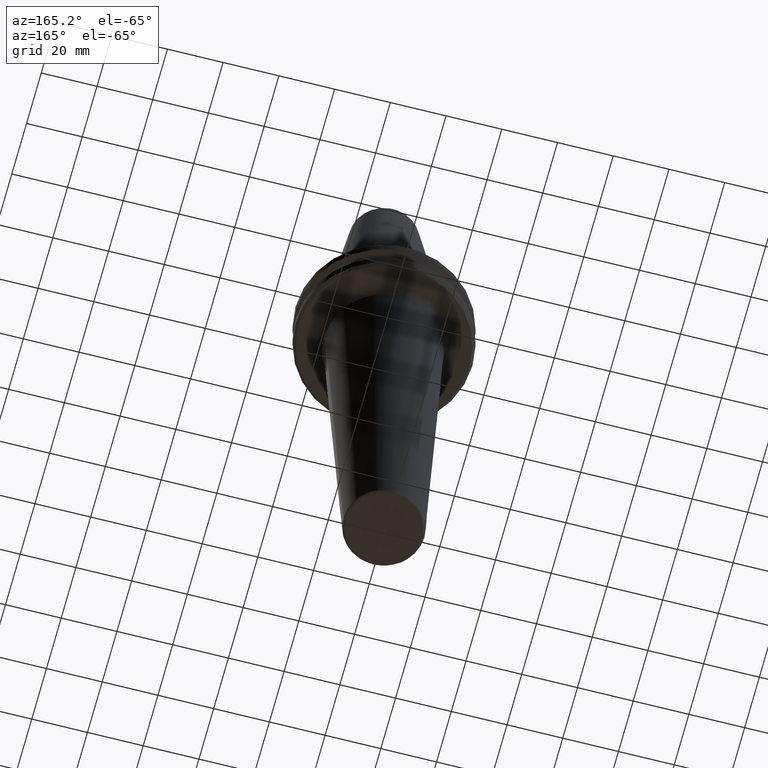
[diagram: clean part render]
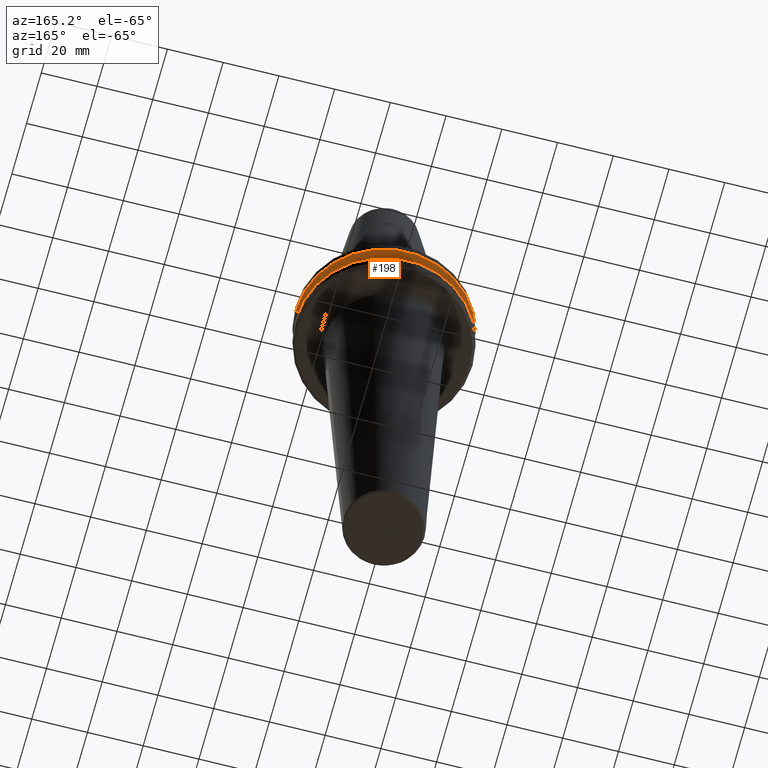
[diagram: same view with one face highlighted and labeled with its STEP entity id]
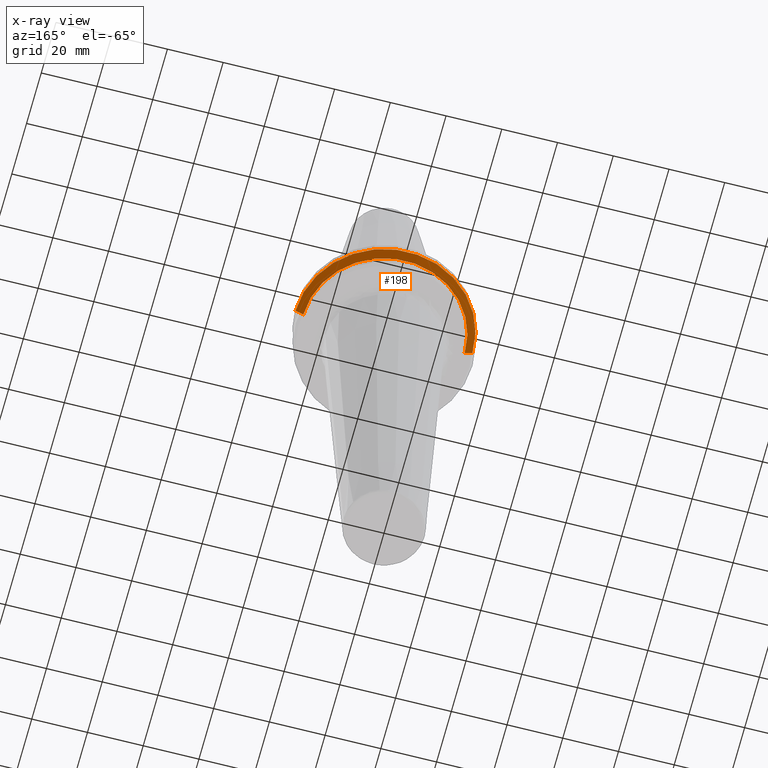
[diagram: x-ray of the same camera — body ghosted, the highlighted face saturated]
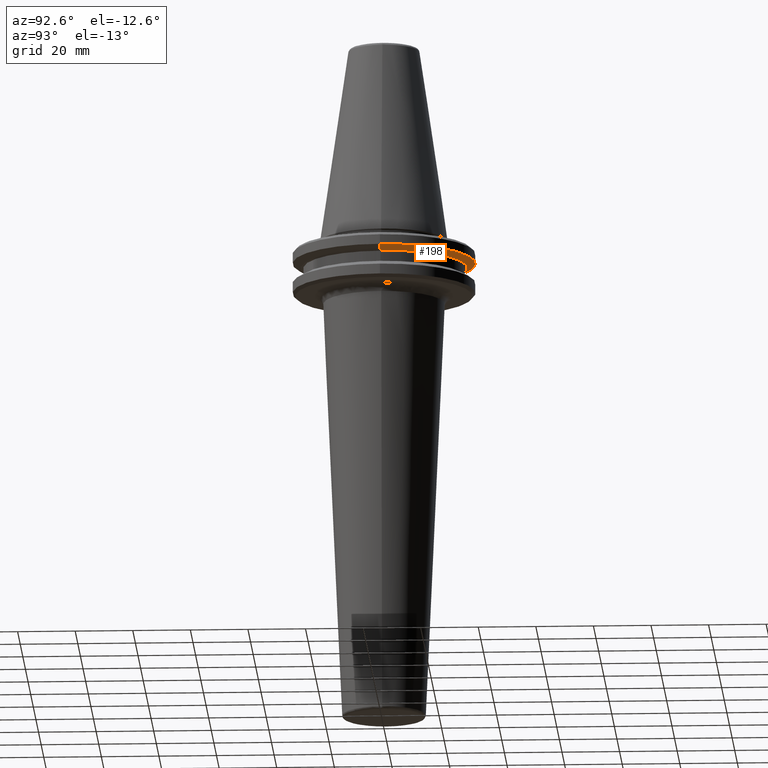
[diagram: same view with one face highlighted and labeled with its STEP entity id]
A machine part, auxiliary view. The second image highlights one B-rep face of the part: STEP entity #198.
The next image is the same camera in x-ray: the body ghosted, the highlighted face saturated — about 0% of this face is hidden behind the body in this view.
A second angle (auxiliary view) of the same face is appended — the face is thin or edge-on in the first view.
In plain terms, the highlighted conical surface has half-angle 60 deg.
Its self-contained STEP definition (entity closure, byte-faithful):
#17 = EDGE_CURVE ( 'NONE', #71, #1092, #256, .T. ) ;
#40 = VECTOR ( 'NONE', #1275, 1000.000000000000000 ) ;
#71 = VERTEX_POINT ( 'NONE', #1544 ) ;
#149 = ORIENTED_EDGE ( 'NONE', *, *, #1019, .F. ) ;
#170 = CARTESIAN_POINT ( 'NONE',  ( -31.75000000000000000, 3.888253587292846500E-015, -7.578163357943284800 ) ) ;
#198 = ADVANCED_FACE ( 'NONE', ( #707 ), #1609, .T. ) ;
#256 = LINE ( 'NONE', #460, #1237 ) ;
#318 = AXIS2_PLACEMENT_3D ( 'NONE', #806, #1538, #680 ) ;
#323 = AXIS2_PLACEMENT_3D ( 'NONE', #1004, #626, #440 ) ;
#421 = ORIENTED_EDGE ( 'NONE', *, *, #1070, .T. ) ;
#438 = LINE ( 'NONE', #573, #40 ) ;
#440 = DIRECTION ( 'NONE',  ( 1.000000000000000000, 0.0000000000000000000, 0.0000000000000000000 ) ) ;
#460 = CARTESIAN_POINT ( 'NONE',  ( -31.75000000000000000, 3.888253587292846500E-015, -7.578163357943284800 ) ) ;
#561 = CARTESIAN_POINT ( 'NONE',  ( 28.94089653438086500, 0.0000000000000000000, -9.199999999999999300 ) ) ;
#573 = CARTESIAN_POINT ( 'NONE',  ( 31.75000000000000000, 0.0000000000000000000, -7.578163357943284800 ) ) ;
#626 = DIRECTION ( 'NONE',  ( 0.0000000000000000000, -0.0000000000000000000, 1.000000000000000000 ) ) ;
#638 = CARTESIAN_POINT ( 'NONE',  ( 0.0000000000000000000, 0.0000000000000000000, -7.578163357943284800 ) ) ;
#680 = DIRECTION ( 'NONE',  ( 1.000000000000000000, 0.0000000000000000000, 0.0000000000000000000 ) ) ;
#684 = CIRCLE ( 'NONE', #1443, 31.75000000000000000 ) ;
#707 = FACE_OUTER_BOUND ( 'NONE', #974, .T. ) ;
#728 = ORIENTED_EDGE ( 'NONE', *, *, #1579, .T. ) ;
#801 = CIRCLE ( 'NONE', #318, 28.94089653438086500 ) ;
#806 = CARTESIAN_POINT ( 'NONE',  ( 0.0000000000000000000, 0.0000000000000000000, -9.199999999999999300 ) ) ;
#861 = CARTESIAN_POINT ( 'NONE',  ( 31.75000000000000000, 0.0000000000000000000, -7.578163357943284800 ) ) ;
#974 = EDGE_LOOP ( 'NONE', ( #728, #1474, #421, #149 ) ) ;
#1004 = CARTESIAN_POINT ( 'NONE',  ( 0.0000000000000000000, 0.0000000000000000000, -7.578163357943284800 ) ) ;
#1019 = EDGE_CURVE ( 'NONE', #1553, #1213, #438, .T. ) ;
#1070 = EDGE_CURVE ( 'NONE', #1092, #1213, #684, .T. ) ;
#1092 = VERTEX_POINT ( 'NONE', #170 ) ;
#1178 = DIRECTION ( 'NONE',  ( -0.0000000000000000000, -0.0000000000000000000, -1.000000000000000000 ) ) ;
#1213 = VERTEX_POINT ( 'NONE', #861 ) ;
#1237 = VECTOR ( 'NONE', #1511, 1000.000000000000000 ) ;
#1275 = DIRECTION ( 'NONE',  ( 0.8660254037844390400, 0.0000000000000000000, 0.4999999999999993300 ) ) ;
#1443 = AXIS2_PLACEMENT_3D ( 'NONE', #638, #1178, #1540 ) ;
#1474 = ORIENTED_EDGE ( 'NONE', *, *, #17, .T. ) ;
#1511 = DIRECTION ( 'NONE',  ( -0.8660254037844390400, 1.060575238724907400E-016, 0.4999999999999993300 ) ) ;
#1538 = DIRECTION ( 'NONE',  ( 0.0000000000000000000, -0.0000000000000000000, 1.000000000000000000 ) ) ;
#1540 = DIRECTION ( 'NONE',  ( 1.000000000000000000, 0.0000000000000000000, -5.463695987328526400E-017 ) ) ;
#1544 = CARTESIAN_POINT ( 'NONE',  ( -28.94089653438086500, 3.716245608910604000E-015, -9.199999999999999300 ) ) ;
#1553 = VERTEX_POINT ( 'NONE', #561 ) ;
#1579 = EDGE_CURVE ( 'NONE', #1553, #71, #801, .T. ) ;
#1609 = CONICAL_SURFACE ( 'NONE', #323, 31.75000000000000000, 1.047197551196598500 ) ;